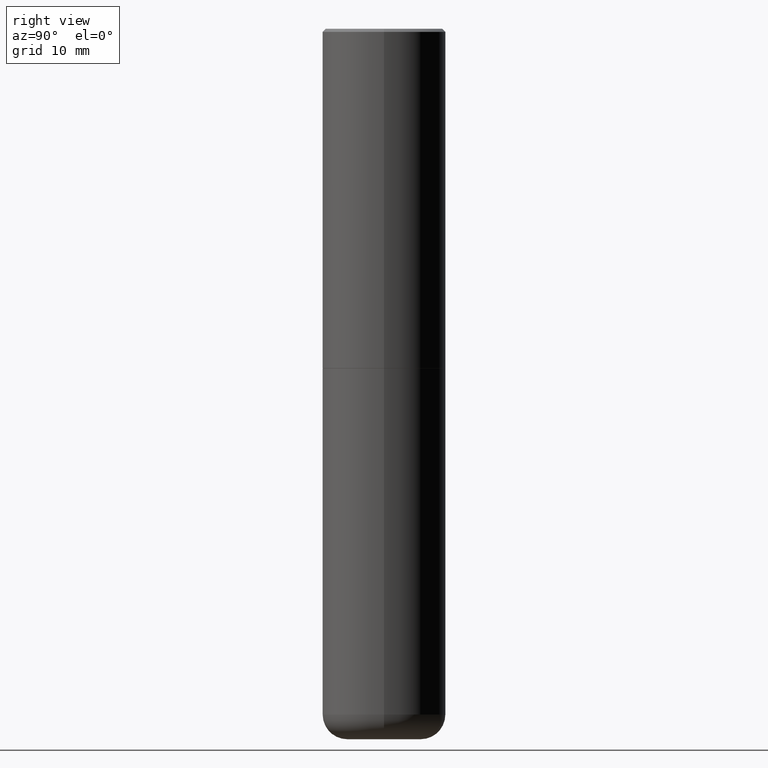
[diagram: clean part render]
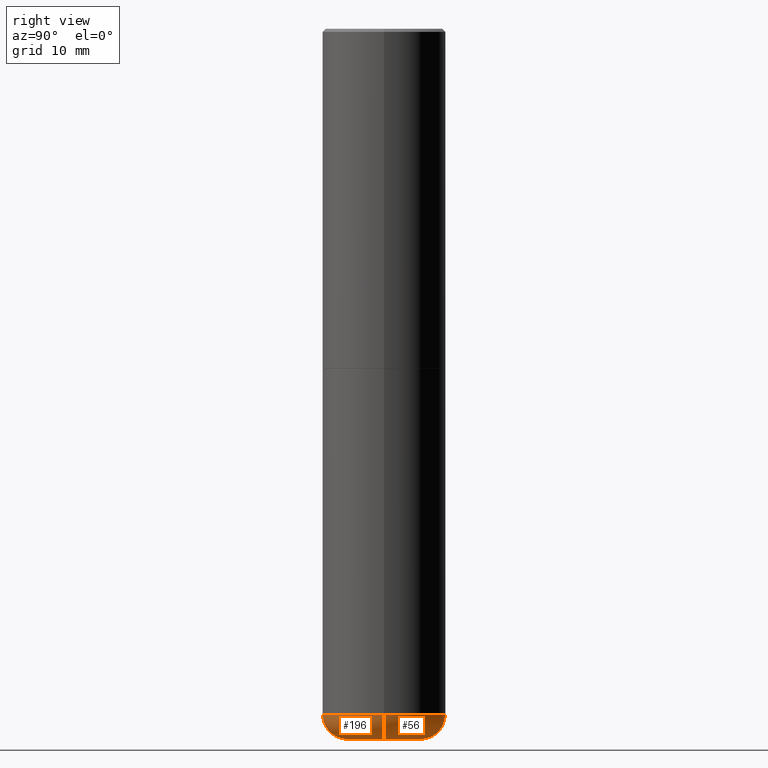
[diagram: same view with one multi-face feature highlighted, each face labeled with its STEP entity id]
A machine part, right view. The highlighted faces form ONE feature: a constant-radius fillet chain: 2 tangent blend faces with common blend radius 4.0005 mm. The faces share edges in the B-rep.
Their STEP definitions:
[1] entity #196 (Torus):
#17 = DIRECTION ( 'NONE',  ( -2.445468806185136597E-29, 3.491481338843145583E-15, 1.000000000000000000 ) ) ;
#20 = CARTESIAN_POINT ( 'NONE',  ( -0.2362000000000000210, -1.357982065701307100E-14, -4.370099999999998985 ) ) ;
#22 = CIRCLE ( 'NONE', #216, 0.3937000000000001054 ) ;
#27 = ORIENTED_EDGE ( 'NONE', *, *, #194, .F. ) ;
#41 = VERTEX_POINT ( 'NONE', #70 ) ;
#46 = CIRCLE ( 'NONE', #336, 0.1575000000000000566 ) ;
#70 = CARTESIAN_POINT ( 'NONE',  ( 0.2362000000000000766, -1.745740669421572042E-14, -4.527599999999999625 ) ) ;
#73 = CIRCLE ( 'NONE', #254, 0.1575000000000000566 ) ;
#74 = FACE_OUTER_BOUND ( 'NONE', #367, .T. ) ;
#84 = CARTESIAN_POINT ( 'NONE',  ( 1.068694322990966450E-28, -1.525812259887842897E-14, -4.370099999999998985 ) ) ;
#85 = AXIS2_PLACEMENT_3D ( 'NONE', #84, #17, #286 ) ;
#91 = DIRECTION ( 'NONE',  ( 1.000000000000000000, -6.982962677686261977E-15, 0.000000000000000000 ) ) ;
#108 = DIRECTION ( 'NONE',  ( 7.105427357601001859E-15, 1.000000000000000000, -3.491481338843145583E-15 ) ) ;
#109 = CARTESIAN_POINT ( 'NONE',  ( 1.107210456688382298E-28, -1.580803090974622389E-14, -4.527599999999999625 ) ) ;
#154 = CARTESIAN_POINT ( 'NONE',  ( -0.2362000000000000766, -1.329522240803589203E-14, -4.527599999999999625 ) ) ;
#155 = DIRECTION ( 'NONE',  ( -2.445468806185136597E-29, 3.491481338843145583E-15, 1.000000000000000000 ) ) ;
#156 = AXIS2_PLACEMENT_3D ( 'NONE', #109, #381, #351 ) ;
#179 = ORIENTED_EDGE ( 'NONE', *, *, #370, .T. ) ;
#185 = DIRECTION ( 'NONE',  ( -1.000000000000000000, 7.105427357601006592E-15, 0.000000000000000000 ) ) ;
#188 = CARTESIAN_POINT ( 'NONE',  ( 1.068694322990966450E-28, -1.525812259887842897E-14, -4.370099999999998985 ) ) ;
#194 = EDGE_CURVE ( 'NONE', #393, #211, #46, .T. ) ;
#196 = ADVANCED_FACE ( 'NONE', ( #74 ), #350, .T. ) ;
#211 = VERTEX_POINT ( 'NONE', #220 ) ;
#216 = AXIS2_PLACEMENT_3D ( 'NONE', #188, #155, #91 ) ;
#220 = CARTESIAN_POINT ( 'NONE',  ( -0.3937000000000001054, -1.246071584819091497E-14, -4.370099999999998985 ) ) ;
#233 = ORIENTED_EDGE ( 'NONE', *, *, #352, .F. ) ;
#254 = AXIS2_PLACEMENT_3D ( 'NONE', #360, #335, #416 ) ;
#261 = CARTESIAN_POINT ( 'NONE',  ( 0.3937000000000001054, -1.800731500508351219E-14, -4.370099999999998985 ) ) ;
#286 = DIRECTION ( 'NONE',  ( 1.000000000000000000, -6.982962677686261977E-15, 4.883557194083110659E-29 ) ) ;
#320 = EDGE_CURVE ( 'NONE', #393, #41, #412, .T. ) ;
#335 = DIRECTION ( 'NONE',  ( -6.982962677686266711E-15, -1.000000000000000000, 3.491481338843145583E-15 ) ) ;
#336 = AXIS2_PLACEMENT_3D ( 'NONE', #20, #108, #185 ) ;
#338 = VERTEX_POINT ( 'NONE', #261 ) ;
#350 = TOROIDAL_SURFACE ( 'NONE', #85, 0.2362000000000000210, 0.1575000000000000844 ) ;
#351 = DIRECTION ( 'NONE',  ( 1.000000000000000000, -6.982962677686262766E-15, 0.000000000000000000 ) ) ;
#352 = EDGE_CURVE ( 'NONE', #211, #338, #22, .T. ) ;
#360 = CARTESIAN_POINT ( 'NONE',  ( 0.2362000000000000210, -1.690749838334792550E-14, -4.370099999999998985 ) ) ;
#367 = EDGE_LOOP ( 'NONE', ( #27, #401, #179, #233 ) ) ;
#370 = EDGE_CURVE ( 'NONE', #41, #338, #73, .T. ) ;
#381 = DIRECTION ( 'NONE',  ( -2.445468806185136597E-29, 3.491481338843145583E-15, 1.000000000000000000 ) ) ;
#393 = VERTEX_POINT ( 'NONE', #154 ) ;
#401 = ORIENTED_EDGE ( 'NONE', *, *, #320, .T. ) ;
#412 = CIRCLE ( 'NONE', #156, 0.2362000000000000766 ) ;
#416 = DIRECTION ( 'NONE',  ( 1.000000000000000000, -6.982962677686259611E-15, 0.000000000000000000 ) ) ;
[2] entity #56 (Torus):
#20 = CARTESIAN_POINT ( 'NONE',  ( -0.2362000000000000210, -1.357982065701307100E-14, -4.370099999999998985 ) ) ;
#24 = CARTESIAN_POINT ( 'NONE',  ( 1.068694322990966450E-28, -1.525812259887842897E-14, -4.370099999999998985 ) ) ;
#41 = VERTEX_POINT ( 'NONE', #70 ) ;
#42 = DIRECTION ( 'NONE',  ( 1.000000000000000000, -6.982962677686261977E-15, 0.000000000000000000 ) ) ;
#46 = CIRCLE ( 'NONE', #336, 0.1575000000000000566 ) ;
#56 = ADVANCED_FACE ( 'NONE', ( #202 ), #362, .T. ) ;
#70 = CARTESIAN_POINT ( 'NONE',  ( 0.2362000000000000766, -1.745740669421572042E-14, -4.527599999999999625 ) ) ;
#73 = CIRCLE ( 'NONE', #254, 0.1575000000000000566 ) ;
#78 = DIRECTION ( 'NONE',  ( 1.000000000000000000, -6.982962677686262766E-15, 0.000000000000000000 ) ) ;
#80 = AXIS2_PLACEMENT_3D ( 'NONE', #24, #151, #42 ) ;
#108 = DIRECTION ( 'NONE',  ( 7.105427357601001859E-15, 1.000000000000000000, -3.491481338843145583E-15 ) ) ;
#121 = ORIENTED_EDGE ( 'NONE', *, *, #370, .F. ) ;
#125 = AXIS2_PLACEMENT_3D ( 'NONE', #287, #173, #78 ) ;
#130 = CARTESIAN_POINT ( 'NONE',  ( 1.068694322990966450E-28, -1.525812259887842897E-14, -4.370099999999998985 ) ) ;
#134 = DIRECTION ( 'NONE',  ( 1.000000000000000000, -6.982962677686261977E-15, 4.883557194083110659E-29 ) ) ;
#138 = ORIENTED_EDGE ( 'NONE', *, *, #285, .F. ) ;
#151 = DIRECTION ( 'NONE',  ( -2.445468806185136597E-29, 3.491481338843145583E-15, 1.000000000000000000 ) ) ;
#154 = CARTESIAN_POINT ( 'NONE',  ( -0.2362000000000000766, -1.329522240803589203E-14, -4.527599999999999625 ) ) ;
#173 = DIRECTION ( 'NONE',  ( -2.445468806185136597E-29, 3.491481338843145583E-15, 1.000000000000000000 ) ) ;
#185 = DIRECTION ( 'NONE',  ( -1.000000000000000000, 7.105427357601006592E-15, 0.000000000000000000 ) ) ;
#194 = EDGE_CURVE ( 'NONE', #393, #211, #46, .T. ) ;
#199 = EDGE_CURVE ( 'NONE', #41, #393, #268, .T. ) ;
#202 = FACE_OUTER_BOUND ( 'NONE', #235, .T. ) ;
#204 = ORIENTED_EDGE ( 'NONE', *, *, #194, .T. ) ;
#211 = VERTEX_POINT ( 'NONE', #220 ) ;
#220 = CARTESIAN_POINT ( 'NONE',  ( -0.3937000000000001054, -1.246071584819091497E-14, -4.370099999999998985 ) ) ;
#235 = EDGE_LOOP ( 'NONE', ( #348, #204, #138, #121 ) ) ;
#238 = CIRCLE ( 'NONE', #80, 0.3937000000000001054 ) ;
#254 = AXIS2_PLACEMENT_3D ( 'NONE', #360, #335, #416 ) ;
#261 = CARTESIAN_POINT ( 'NONE',  ( 0.3937000000000001054, -1.800731500508351219E-14, -4.370099999999998985 ) ) ;
#268 = CIRCLE ( 'NONE', #125, 0.2362000000000000766 ) ;
#274 = AXIS2_PLACEMENT_3D ( 'NONE', #130, #275, #134 ) ;
#275 = DIRECTION ( 'NONE',  ( -2.445468806185136597E-29, 3.491481338843145583E-15, 1.000000000000000000 ) ) ;
#285 = EDGE_CURVE ( 'NONE', #338, #211, #238, .T. ) ;
#287 = CARTESIAN_POINT ( 'NONE',  ( 1.107210456688382298E-28, -1.580803090974622389E-14, -4.527599999999999625 ) ) ;
#335 = DIRECTION ( 'NONE',  ( -6.982962677686266711E-15, -1.000000000000000000, 3.491481338843145583E-15 ) ) ;
#336 = AXIS2_PLACEMENT_3D ( 'NONE', #20, #108, #185 ) ;
#338 = VERTEX_POINT ( 'NONE', #261 ) ;
#348 = ORIENTED_EDGE ( 'NONE', *, *, #199, .T. ) ;
#360 = CARTESIAN_POINT ( 'NONE',  ( 0.2362000000000000210, -1.690749838334792550E-14, -4.370099999999998985 ) ) ;
#362 = TOROIDAL_SURFACE ( 'NONE', #274, 0.2362000000000000210, 0.1575000000000000844 ) ;
#370 = EDGE_CURVE ( 'NONE', #41, #338, #73, .T. ) ;
#393 = VERTEX_POINT ( 'NONE', #154 ) ;
#416 = DIRECTION ( 'NONE',  ( 1.000000000000000000, -6.982962677686259611E-15, 0.000000000000000000 ) ) ;